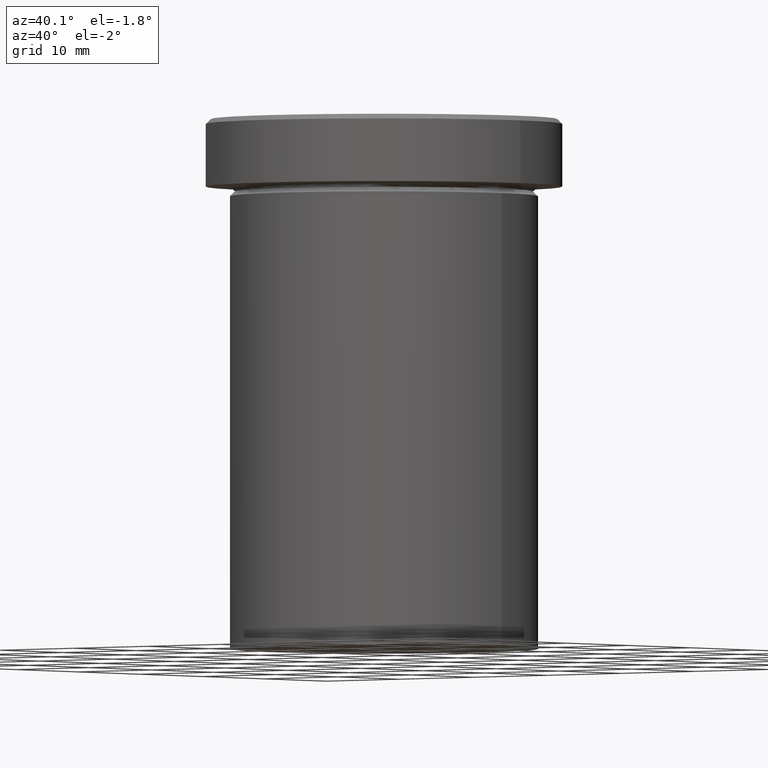
[diagram: clean part render]
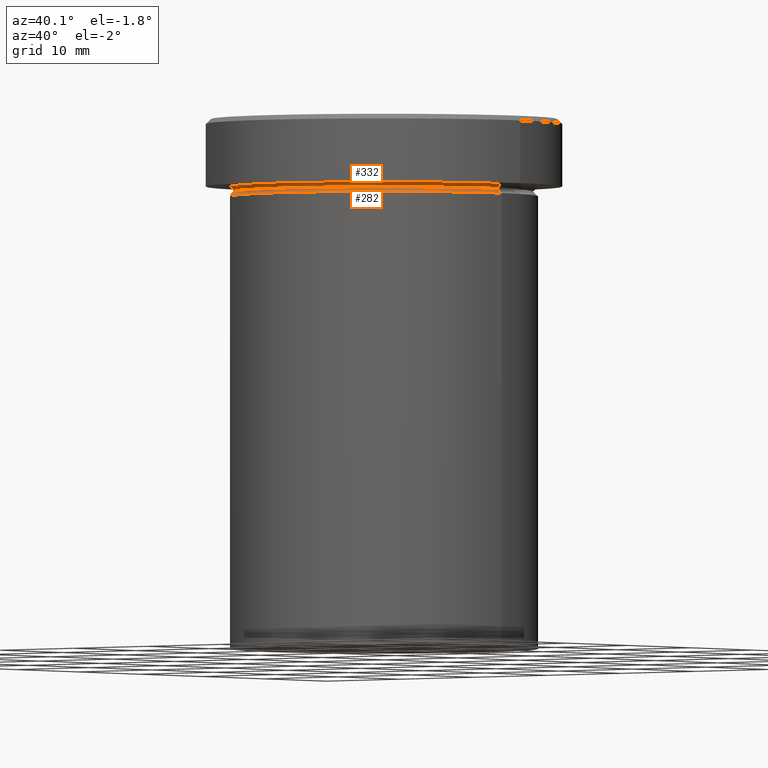
[diagram: same view with one multi-face feature highlighted, each face labeled with its STEP entity id]
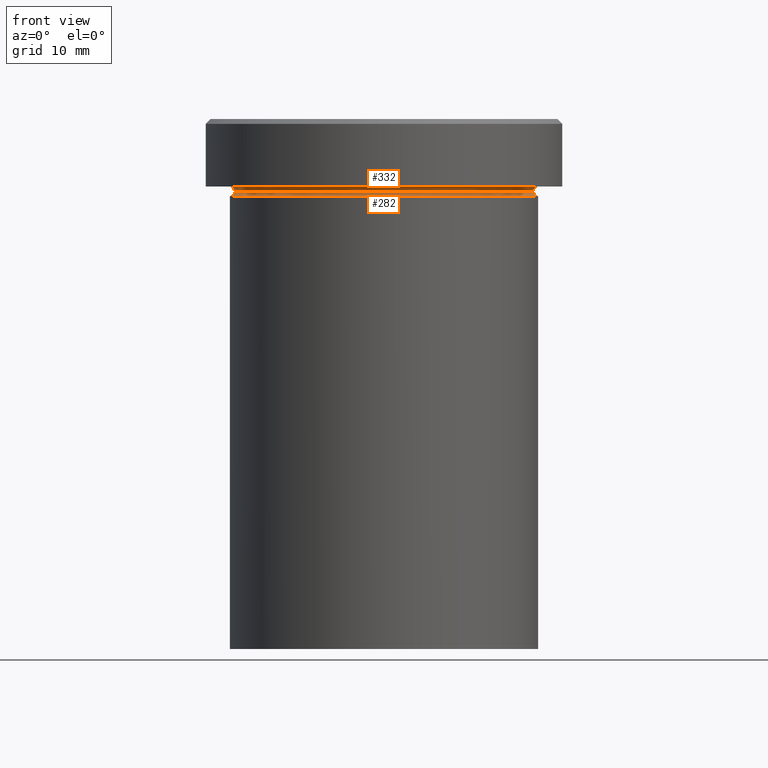
[diagram: same view with one multi-face feature highlighted, each face labeled with its STEP entity id]
A machine part, auxiliary view. The highlighted faces form ONE feature: a constant-radius fillet chain: 2 tangent blend faces with common blend radius 0.5 mm. The faces share edges in the B-rep.
A second angle (front view) of the same feature is appended — it is thin or edge-on in the first view.
Their STEP definitions:
[1] entity #332 (Torus):
#3 = EDGE_CURVE ( 'NONE', #29, #96, #65, .T. ) ;
#8 = EDGE_CURVE ( 'NONE', #58, #96, #328, .T. ) ;
#29 = VERTEX_POINT ( 'NONE', #233 ) ;
#34 = DIRECTION ( 'NONE',  ( 0.000000000000000000, 0.000000000000000000, -1.000000000000000000 ) ) ;
#36 = CARTESIAN_POINT ( 'NONE',  ( -15.50000000000000000, 1.928818708657081344E-15, -7.500000000000000000 ) ) ;
#44 = DIRECTION ( 'NONE',  ( -1.000000000000000000, 0.000000000000000000, 0.000000000000000000 ) ) ;
#58 = VERTEX_POINT ( 'NONE', #318 ) ;
#61 = CARTESIAN_POINT ( 'NONE',  ( 16.00000000000000000, 1.959434878635765131E-15, -6.999999999999999112 ) ) ;
#65 = CIRCLE ( 'NONE', #118, 16.00000000000000000 ) ;
#68 = CIRCLE ( 'NONE', #167, 0.5000000000000004441 ) ;
#76 = CARTESIAN_POINT ( 'NONE',  ( -16.00000000000000000, 0.000000000000000000, -7.500000000000000000 ) ) ;
#84 = EDGE_CURVE ( 'NONE', #185, #58, #408, .T. ) ;
#86 = EDGE_LOOP ( 'NONE', ( #222, #402, #122, #376 ) ) ;
#96 = VERTEX_POINT ( 'NONE', #61 ) ;
#114 = DIRECTION ( 'NONE',  ( -1.000000000000000000, -1.224646799147349509E-16, 0.000000000000000000 ) ) ;
#116 = DIRECTION ( 'NONE',  ( -1.224646799147353207E-16, 1.000000000000000000, 0.000000000000000000 ) ) ;
#118 = AXIS2_PLACEMENT_3D ( 'NONE', #278, #272, #178 ) ;
#122 = ORIENTED_EDGE ( 'NONE', *, *, #3, .F. ) ;
#125 = CARTESIAN_POINT ( 'NONE',  ( 0.000000000000000000, 0.000000000000000000, -7.500000000000000000 ) ) ;
#132 = CARTESIAN_POINT ( 'NONE',  ( 0.000000000000000000, 0.000000000000000000, -7.500000000000000000 ) ) ;
#162 = AXIS2_PLACEMENT_3D ( 'NONE', #132, #293, #44 ) ;
#167 = AXIS2_PLACEMENT_3D ( 'NONE', #76, #301, #34 ) ;
#177 = EDGE_CURVE ( 'NONE', #185, #29, #68, .T. ) ;
#178 = DIRECTION ( 'NONE',  ( -1.000000000000000000, 0.000000000000000000, 0.000000000000000000 ) ) ;
#185 = VERTEX_POINT ( 'NONE', #36 ) ;
#191 = TOROIDAL_SURFACE ( 'NONE', #162, 16.00000000000000000, 0.5000000000000000000 ) ;
#205 = AXIS2_PLACEMENT_3D ( 'NONE', #125, #377, #347 ) ;
#222 = ORIENTED_EDGE ( 'NONE', *, *, #84, .T. ) ;
#233 = CARTESIAN_POINT ( 'NONE',  ( -16.00000000000000000, 0.000000000000000000, -6.999999999999999112 ) ) ;
#237 = AXIS2_PLACEMENT_3D ( 'NONE', #400, #116, #114 ) ;
#261 = FACE_OUTER_BOUND ( 'NONE', #86, .T. ) ;
#272 = DIRECTION ( 'NONE',  ( -0.000000000000000000, -0.000000000000000000, 1.000000000000000000 ) ) ;
#278 = CARTESIAN_POINT ( 'NONE',  ( 0.000000000000000000, 0.000000000000000000, -6.999999999999999112 ) ) ;
#293 = DIRECTION ( 'NONE',  ( 0.000000000000000000, 0.000000000000000000, -1.000000000000000000 ) ) ;
#301 = DIRECTION ( 'NONE',  ( -0.000000000000000000, -1.000000000000000000, -0.000000000000000000 ) ) ;
#318 = CARTESIAN_POINT ( 'NONE',  ( 15.50000000000000000, 0.000000000000000000, -7.500000000000000000 ) ) ;
#328 = CIRCLE ( 'NONE', #237, 0.5000000000000004441 ) ;
#332 = ADVANCED_FACE ( 'NONE', ( #261 ), #191, .F. ) ;
#347 = DIRECTION ( 'NONE',  ( 1.000000000000000000, 0.000000000000000000, 0.000000000000000000 ) ) ;
#376 = ORIENTED_EDGE ( 'NONE', *, *, #177, .F. ) ;
#377 = DIRECTION ( 'NONE',  ( -0.000000000000000000, -0.000000000000000000, 1.000000000000000000 ) ) ;
#400 = CARTESIAN_POINT ( 'NONE',  ( 16.00000000000000000, 1.959434878635765131E-15, -7.500000000000000000 ) ) ;
#402 = ORIENTED_EDGE ( 'NONE', *, *, #8, .T. ) ;
#408 = CIRCLE ( 'NONE', #205, 15.50000000000000000 ) ;
[2] entity #282 (Torus):
#4 = CARTESIAN_POINT ( 'NONE',  ( 0.000000000000000000, 0.000000000000000000, -8.000000000000000000 ) ) ;
#7 = DIRECTION ( 'NONE',  ( 1.224646799147353207E-16, 1.000000000000000000, 0.000000000000000000 ) ) ;
#13 = EDGE_CURVE ( 'NONE', #58, #209, #313, .T. ) ;
#19 = DIRECTION ( 'NONE',  ( 0.000000000000000000, 0.000000000000000000, -1.000000000000000000 ) ) ;
#20 = AXIS2_PLACEMENT_3D ( 'NONE', #137, #164, #129 ) ;
#24 = VERTEX_POINT ( 'NONE', #365 ) ;
#36 = CARTESIAN_POINT ( 'NONE',  ( -15.50000000000000000, 1.928818708657081344E-15, -7.500000000000000000 ) ) ;
#38 = EDGE_CURVE ( 'NONE', #24, #209, #276, .T. ) ;
#58 = VERTEX_POINT ( 'NONE', #318 ) ;
#84 = EDGE_CURVE ( 'NONE', #185, #58, #408, .T. ) ;
#93 = CARTESIAN_POINT ( 'NONE',  ( 16.00000000000000000, 0.000000000000000000, -8.000000000000000000 ) ) ;
#115 = CIRCLE ( 'NONE', #354, 0.5000000000000004441 ) ;
#121 = ORIENTED_EDGE ( 'NONE', *, *, #84, .F. ) ;
#125 = CARTESIAN_POINT ( 'NONE',  ( 0.000000000000000000, 0.000000000000000000, -7.500000000000000000 ) ) ;
#129 = DIRECTION ( 'NONE',  ( 1.000000000000000000, 0.000000000000000000, 0.000000000000000000 ) ) ;
#137 = CARTESIAN_POINT ( 'NONE',  ( 0.000000000000000000, 0.000000000000000000, -7.500000000000000000 ) ) ;
#161 = FACE_OUTER_BOUND ( 'NONE', #317, .T. ) ;
#163 = AXIS2_PLACEMENT_3D ( 'NONE', #268, #393, #19 ) ;
#164 = DIRECTION ( 'NONE',  ( -0.000000000000000000, -0.000000000000000000, 1.000000000000000000 ) ) ;
#185 = VERTEX_POINT ( 'NONE', #36 ) ;
#188 = DIRECTION ( 'NONE',  ( -0.000000000000000000, -0.000000000000000000, 1.000000000000000000 ) ) ;
#190 = DIRECTION ( 'NONE',  ( 1.000000000000000000, 0.000000000000000000, 0.000000000000000000 ) ) ;
#200 = ORIENTED_EDGE ( 'NONE', *, *, #38, .T. ) ;
#204 = DIRECTION ( 'NONE',  ( -1.000000000000000000, 1.224646799147349509E-16, 0.000000000000000000 ) ) ;
#205 = AXIS2_PLACEMENT_3D ( 'NONE', #125, #377, #347 ) ;
#209 = VERTEX_POINT ( 'NONE', #93 ) ;
#219 = EDGE_CURVE ( 'NONE', #185, #24, #115, .T. ) ;
#220 = CARTESIAN_POINT ( 'NONE',  ( -16.00000000000000000, 1.959434878635765131E-15, -7.500000000000000000 ) ) ;
#238 = TOROIDAL_SURFACE ( 'NONE', #20, 16.00000000000000000, 0.5000000000000000000 ) ;
#259 = ORIENTED_EDGE ( 'NONE', *, *, #13, .F. ) ;
#268 = CARTESIAN_POINT ( 'NONE',  ( 16.00000000000000000, 0.000000000000000000, -7.500000000000000000 ) ) ;
#276 = CIRCLE ( 'NONE', #281, 16.00000000000000000 ) ;
#281 = AXIS2_PLACEMENT_3D ( 'NONE', #4, #188, #190 ) ;
#282 = ADVANCED_FACE ( 'NONE', ( #161 ), #238, .F. ) ;
#295 = ORIENTED_EDGE ( 'NONE', *, *, #219, .T. ) ;
#313 = CIRCLE ( 'NONE', #163, 0.5000000000000004441 ) ;
#317 = EDGE_LOOP ( 'NONE', ( #121, #295, #200, #259 ) ) ;
#318 = CARTESIAN_POINT ( 'NONE',  ( 15.50000000000000000, 0.000000000000000000, -7.500000000000000000 ) ) ;
#347 = DIRECTION ( 'NONE',  ( 1.000000000000000000, 0.000000000000000000, 0.000000000000000000 ) ) ;
#354 = AXIS2_PLACEMENT_3D ( 'NONE', #220, #7, #204 ) ;
#365 = CARTESIAN_POINT ( 'NONE',  ( -16.00000000000000000, 1.959434878635765131E-15, -8.000000000000000000 ) ) ;
#377 = DIRECTION ( 'NONE',  ( -0.000000000000000000, -0.000000000000000000, 1.000000000000000000 ) ) ;
#393 = DIRECTION ( 'NONE',  ( 0.000000000000000000, -1.000000000000000000, 0.000000000000000000 ) ) ;
#408 = CIRCLE ( 'NONE', #205, 15.50000000000000000 ) ;